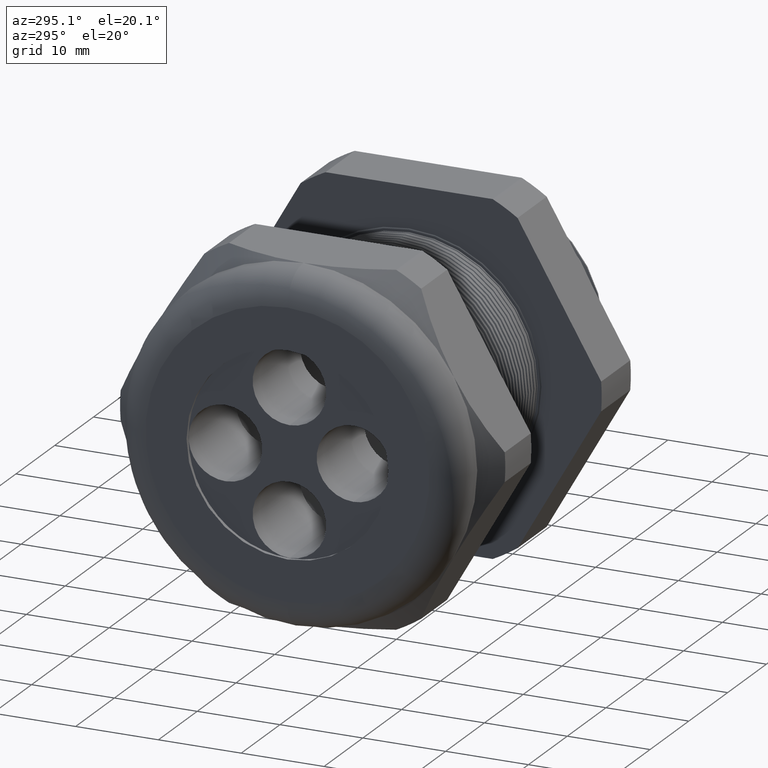
[diagram: clean part render]
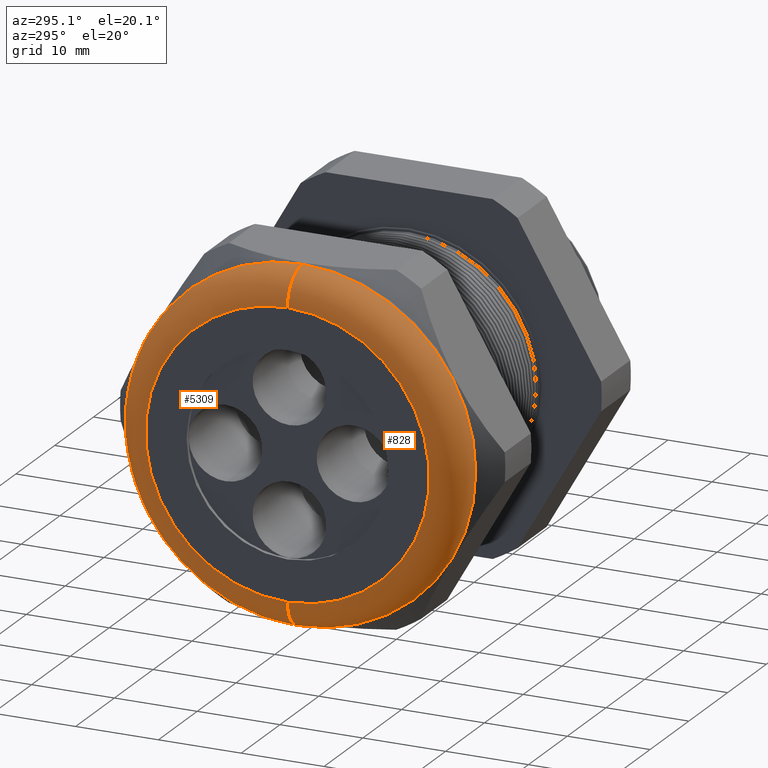
[diagram: same view with one multi-face feature highlighted, each face labeled with its STEP entity id]
A machine part, auxiliary view. The highlighted faces form ONE feature: a constant-radius fillet chain: 2 tangent blend faces with common blend radius 3.81 mm. The faces share edges in the B-rep.
Their STEP definitions:
[1] entity #5309 (Torus):
#93 = EDGE_CURVE ( 'NONE', #5305, #111, #1975, .T. ) ;
#99 = EDGE_CURVE ( 'NONE', #111, #5311, #1951, .T. ) ;
#103 = ORIENTED_EDGE ( 'NONE', *, *, #93, .F. ) ;
#111 = VERTEX_POINT ( 'NONE', #1988 ) ;
#1947 = DIRECTION ( 'NONE',  ( 0.0000000000000000000, 0.0000000000000000000, 1.000000000000000000 ) ) ;
#1948 = DIRECTION ( 'NONE',  ( -1.000000000000000000, 0.0000000000000000000, 0.0000000000000000000 ) ) ;
#1949 = CARTESIAN_POINT ( 'NONE',  ( -1.839999999999999400, 0.0000000000000000000, 0.0000000000000000000 ) ) ;
#1950 = AXIS2_PLACEMENT_3D ( 'NONE', #1949, #1948, #1947 ) ;
#1951 = CIRCLE ( 'NONE', #1950, 0.6749999999999997100 ) ;
#1963 = DIRECTION ( 'NONE',  ( 0.0000000000000000000, 0.0000000000000000000, -1.000000000000000000 ) ) ;
#1964 = DIRECTION ( 'NONE',  ( 0.0000000000000000000, -1.000000000000000000, 0.0000000000000000000 ) ) ;
#1965 = CARTESIAN_POINT ( 'NONE',  ( -1.689999999999999500, 0.0000000000000000000, 0.6749999999999997100 ) ) ;
#1966 = AXIS2_PLACEMENT_3D ( 'NONE', #1965, #1964, #1963 ) ;
#1975 = CIRCLE ( 'NONE', #1966, 0.1499999999999999700 ) ;
#1988 = CARTESIAN_POINT ( 'NONE',  ( -1.839999999999999400, 0.0000000000000000000, 0.6749999999999997100 ) ) ;
#5297 = ORIENTED_EDGE ( 'NONE', *, *, #5314, .F. ) ;
#5298 = EDGE_LOOP ( 'NONE', ( #5297, #5312, #5302, #103 ) ) ;
#5301 = VERTEX_POINT ( 'NONE', #6261 ) ;
#5302 = ORIENTED_EDGE ( 'NONE', *, *, #99, .F. ) ;
#5305 = VERTEX_POINT ( 'NONE', #6318 ) ;
#5309 = ADVANCED_FACE ( 'NONE', ( #6308 ), #6307, .T. ) ;
#5311 = VERTEX_POINT ( 'NONE', #6301 ) ;
#5312 = ORIENTED_EDGE ( 'NONE', *, *, #5315, .T. ) ;
#5314 = EDGE_CURVE ( 'NONE', #5301, #5305, #6299, .T. ) ;
#5315 = EDGE_CURVE ( 'NONE', #5301, #5311, #6294, .T. ) ;
#6261 = CARTESIAN_POINT ( 'NONE',  ( -1.689999999999999500, 0.0000000000000000000, -0.8249999999999998400 ) ) ;
#6291 = DIRECTION ( 'NONE',  ( 0.0000000000000000000, -1.224646799147353200E-016, 1.000000000000000000 ) ) ;
#6292 = DIRECTION ( 'NONE',  ( 0.0000000000000000000, 1.000000000000000000, 1.224646799147353200E-016 ) ) ;
#6293 = AXIS2_PLACEMENT_3D ( 'NONE', #6300, #6292, #6291 ) ;
#6294 = CIRCLE ( 'NONE', #6293, 0.1499999999999999700 ) ;
#6295 = DIRECTION ( 'NONE',  ( 0.0000000000000000000, 0.0000000000000000000, 1.000000000000000000 ) ) ;
#6296 = DIRECTION ( 'NONE',  ( 1.000000000000000000, 0.0000000000000000000, 0.0000000000000000000 ) ) ;
#6297 = CARTESIAN_POINT ( 'NONE',  ( -1.689999999999999500, 0.0000000000000000000, 0.0000000000000000000 ) ) ;
#6298 = AXIS2_PLACEMENT_3D ( 'NONE', #6297, #6296, #6295 ) ;
#6299 = CIRCLE ( 'NONE', #6298, 0.8249999999999998400 ) ;
#6300 = CARTESIAN_POINT ( 'NONE',  ( -1.689999999999999500, 8.266365894244631900E-017, -0.6749999999999997100 ) ) ;
#6301 = CARTESIAN_POINT ( 'NONE',  ( -1.839999999999999400, 9.184850993605146000E-017, -0.6749999999999997100 ) ) ;
#6303 = DIRECTION ( 'NONE',  ( 0.0000000000000000000, 0.0000000000000000000, 1.000000000000000000 ) ) ;
#6304 = DIRECTION ( 'NONE',  ( -1.000000000000000000, 0.0000000000000000000, 0.0000000000000000000 ) ) ;
#6305 = CARTESIAN_POINT ( 'NONE',  ( -1.689999999999999500, 0.0000000000000000000, 0.0000000000000000000 ) ) ;
#6306 = AXIS2_PLACEMENT_3D ( 'NONE', #6305, #6304, #6303 ) ;
#6307 = TOROIDAL_SURFACE ( 'NONE', #6306, 0.6749999999999997100, 0.1499999999999999900 ) ;
#6308 = FACE_OUTER_BOUND ( 'NONE', #5298, .T. ) ;
#6318 = CARTESIAN_POINT ( 'NONE',  ( -1.689999999999999500, 1.010333609296566100E-016, 0.8249999999999998400 ) ) ;
[2] entity #828 (Torus):
#93 = EDGE_CURVE ( 'NONE', #5305, #111, #1975, .T. ) ;
#111 = VERTEX_POINT ( 'NONE', #1988 ) ;
#704 = EDGE_CURVE ( 'NONE', #5305, #5301, #3143, .T. ) ;
#722 = EDGE_CURVE ( 'NONE', #5311, #111, #3234, .T. ) ;
#828 = ADVANCED_FACE ( 'NONE', ( #3349 ), #3348, .T. ) ;
#829 = EDGE_LOOP ( 'NONE', ( #830, #831, #832, #833 ) ) ;
#830 = ORIENTED_EDGE ( 'NONE', *, *, #5315, .F. ) ;
#831 = ORIENTED_EDGE ( 'NONE', *, *, #704, .F. ) ;
#832 = ORIENTED_EDGE ( 'NONE', *, *, #93, .T. ) ;
#833 = ORIENTED_EDGE ( 'NONE', *, *, #722, .F. ) ;
#1963 = DIRECTION ( 'NONE',  ( 0.0000000000000000000, 0.0000000000000000000, -1.000000000000000000 ) ) ;
#1964 = DIRECTION ( 'NONE',  ( 0.0000000000000000000, -1.000000000000000000, 0.0000000000000000000 ) ) ;
#1965 = CARTESIAN_POINT ( 'NONE',  ( -1.689999999999999500, 0.0000000000000000000, 0.6749999999999997100 ) ) ;
#1966 = AXIS2_PLACEMENT_3D ( 'NONE', #1965, #1964, #1963 ) ;
#1975 = CIRCLE ( 'NONE', #1966, 0.1499999999999999700 ) ;
#1988 = CARTESIAN_POINT ( 'NONE',  ( -1.839999999999999400, 0.0000000000000000000, 0.6749999999999997100 ) ) ;
#3139 = DIRECTION ( 'NONE',  ( 0.0000000000000000000, 0.0000000000000000000, 1.000000000000000000 ) ) ;
#3140 = DIRECTION ( 'NONE',  ( 1.000000000000000000, 0.0000000000000000000, 0.0000000000000000000 ) ) ;
#3141 = CARTESIAN_POINT ( 'NONE',  ( -1.689999999999999500, 0.0000000000000000000, 0.0000000000000000000 ) ) ;
#3142 = AXIS2_PLACEMENT_3D ( 'NONE', #3141, #3140, #3139 ) ;
#3143 = CIRCLE ( 'NONE', #3142, 0.8249999999999998400 ) ;
#3230 = DIRECTION ( 'NONE',  ( 0.0000000000000000000, 0.0000000000000000000, 1.000000000000000000 ) ) ;
#3231 = DIRECTION ( 'NONE',  ( -1.000000000000000000, 0.0000000000000000000, 0.0000000000000000000 ) ) ;
#3232 = CARTESIAN_POINT ( 'NONE',  ( -1.839999999999999400, 0.0000000000000000000, 0.0000000000000000000 ) ) ;
#3233 = AXIS2_PLACEMENT_3D ( 'NONE', #3232, #3231, #3230 ) ;
#3234 = CIRCLE ( 'NONE', #3233, 0.6749999999999997100 ) ;
#3345 = DIRECTION ( 'NONE',  ( 0.0000000000000000000, 0.0000000000000000000, 1.000000000000000000 ) ) ;
#3346 = DIRECTION ( 'NONE',  ( -1.000000000000000000, 0.0000000000000000000, 0.0000000000000000000 ) ) ;
#3347 = AXIS2_PLACEMENT_3D ( 'NONE', #3353, #3346, #3345 ) ;
#3348 = TOROIDAL_SURFACE ( 'NONE', #3347, 0.6749999999999997100, 0.1499999999999999900 ) ;
#3349 = FACE_OUTER_BOUND ( 'NONE', #829, .T. ) ;
#3353 = CARTESIAN_POINT ( 'NONE',  ( -1.689999999999999500, 0.0000000000000000000, 0.0000000000000000000 ) ) ;
#5301 = VERTEX_POINT ( 'NONE', #6261 ) ;
#5305 = VERTEX_POINT ( 'NONE', #6318 ) ;
#5311 = VERTEX_POINT ( 'NONE', #6301 ) ;
#5315 = EDGE_CURVE ( 'NONE', #5301, #5311, #6294, .T. ) ;
#6261 = CARTESIAN_POINT ( 'NONE',  ( -1.689999999999999500, 0.0000000000000000000, -0.8249999999999998400 ) ) ;
#6291 = DIRECTION ( 'NONE',  ( 0.0000000000000000000, -1.224646799147353200E-016, 1.000000000000000000 ) ) ;
#6292 = DIRECTION ( 'NONE',  ( 0.0000000000000000000, 1.000000000000000000, 1.224646799147353200E-016 ) ) ;
#6293 = AXIS2_PLACEMENT_3D ( 'NONE', #6300, #6292, #6291 ) ;
#6294 = CIRCLE ( 'NONE', #6293, 0.1499999999999999700 ) ;
#6300 = CARTESIAN_POINT ( 'NONE',  ( -1.689999999999999500, 8.266365894244631900E-017, -0.6749999999999997100 ) ) ;
#6301 = CARTESIAN_POINT ( 'NONE',  ( -1.839999999999999400, 9.184850993605146000E-017, -0.6749999999999997100 ) ) ;
#6318 = CARTESIAN_POINT ( 'NONE',  ( -1.689999999999999500, 1.010333609296566100E-016, 0.8249999999999998400 ) ) ;